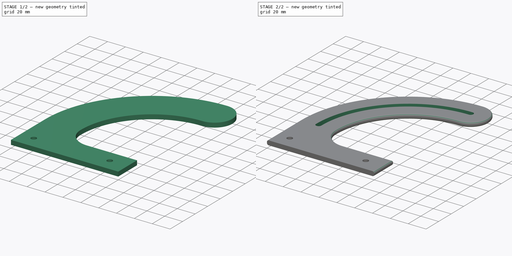
[diagram: build sequence overview — one tinted view per stage of 2, left to right]
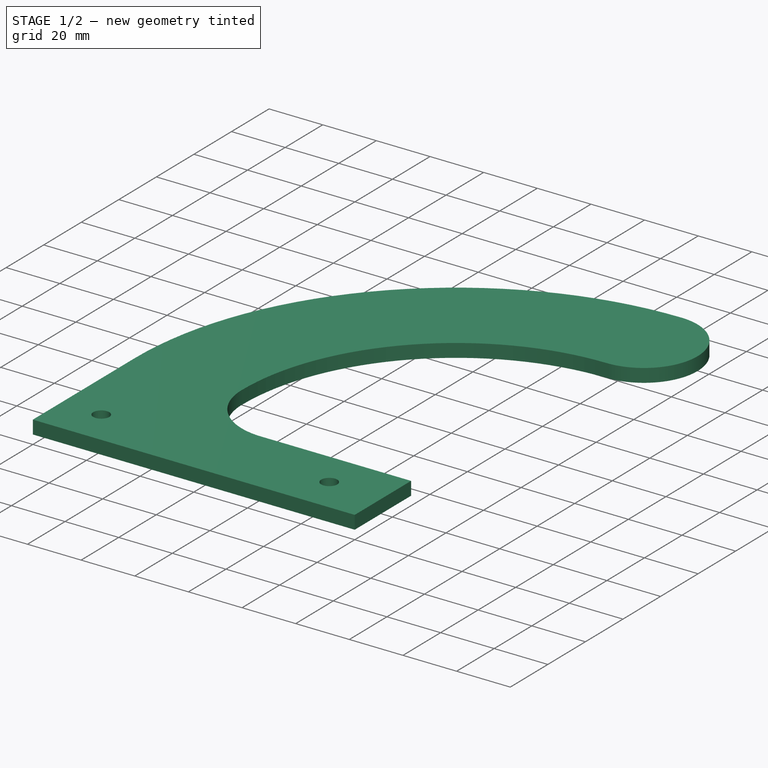
[diagram: stage 1 of 2 — iso view after this stage's code; geometry added in this stage tinted green]
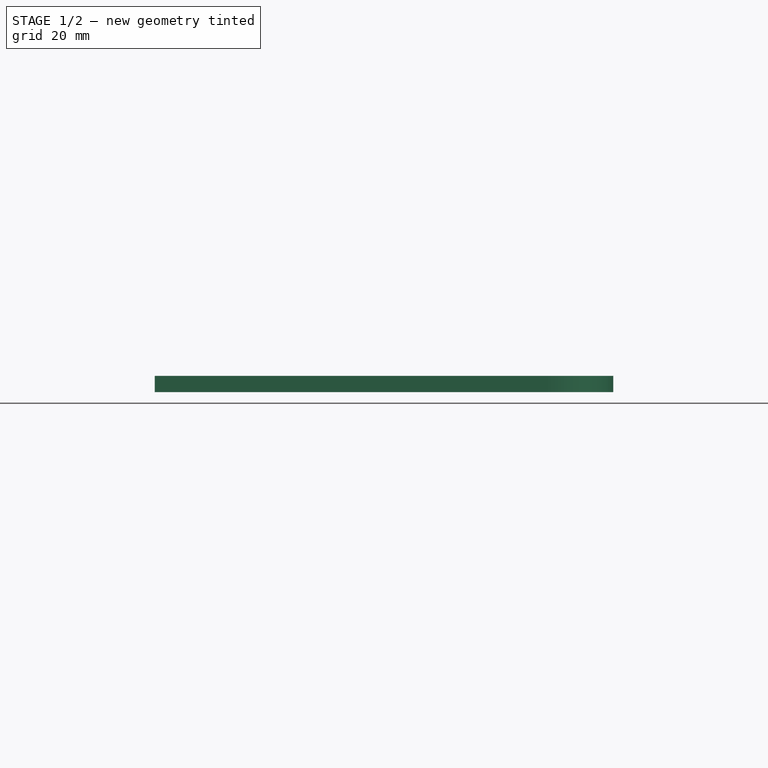
[diagram: stage 1 of 2 — front view after this stage's code; geometry added in this stage tinted green]
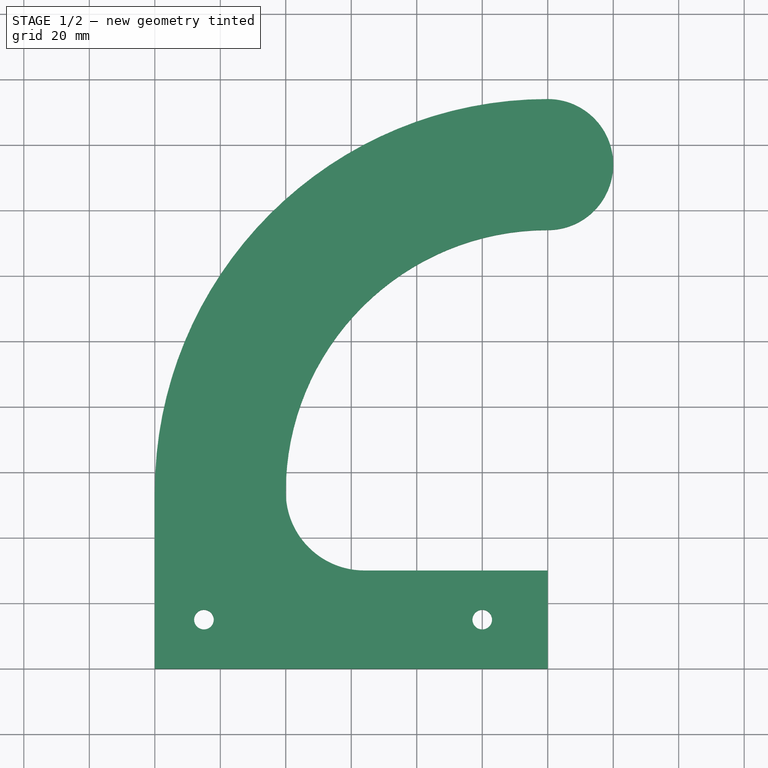
[diagram: stage 1 of 2 — top view after this stage's code; geometry added in this stage tinted green]
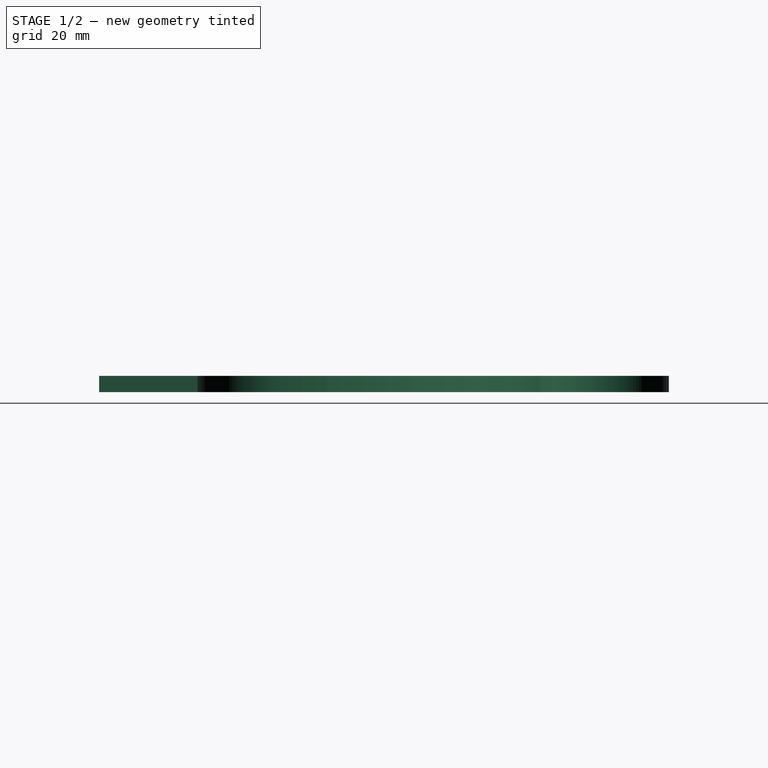
[diagram: stage 1 of 2 — right view after this stage's code; geometry added in this stage tinted green]
FCSTD DOCUMENT  (FreeCAD 0.19R24291 (Git))
Label: Halter_Unten_V3
License: All rights reserved
LicenseURL: http://en.wikipedia.org/wiki/All_rights_reserved
objects: Sketcher::SketchObject×3, PartDesign::Pad×1, PartDesign::Hole×1, PartDesign::Pocket×1, PartDesign::Fillet×1, PartDesign::Body×1
note: 12 computed .brp shape members not serialized (recipe doc carries the construction recipe); baked Part::Feature solids carry a one-line shape summary decoded from their .brp

FEATURE [Sketcher::SketchObject] Sketch
  FullyConstrained = true
  MapMode = 5
  Support = -> [XY_Plane]
  sketch-geometry (12):
    g0: LineSegment StartX=0 StartY=0 StartZ=0 EndX=120 EndY=0 EndZ=0
    g1: LineSegment StartX=0 StartY=0 StartZ=0 EndX=0 EndY=54 EndZ=0
    g2: ArcOfCircle CenterX=120 CenterY=54 CenterZ=0 NormalX=0 NormalY=0 NormalZ=1 AngleXU=0 Radius=120 StartAngle=1.5708 EndAngle=3.14159
    g3: LineSegment StartX=0 StartY=54 StartZ=0 EndX=120 EndY=54 EndZ=0
    g4: LineSegment StartX=120 StartY=134 StartZ=0 EndX=120 EndY=54 EndZ=0
    g5: LineSegment StartX=120 StartY=0 StartZ=0 EndX=120 EndY=30 EndZ=0
    g6: LineSegment StartX=120 StartY=30 StartZ=0 EndX=64 EndY=30 EndZ=0
    g7: ArcOfCircle CenterX=120 CenterY=54 CenterZ=0 NormalX=0 NormalY=0 NormalZ=1 AngleXU=0 Radius=80 StartAngle=1.5708 EndAngle=3.14159
    g8: ArcOfCircle CenterX=64 CenterY=54 CenterZ=0 NormalX=0 NormalY=0 NormalZ=1 AngleXU=0 Radius=24 StartAngle=3.14159 EndAngle=4.71239
    g9: LineSegment StartX=64 StartY=30 StartZ=0 EndX=64 EndY=54 EndZ=0
    g10: ArcOfCircle CenterX=120 CenterY=154 CenterZ=0 NormalX=0 NormalY=0 NormalZ=1 AngleXU=0 Radius=20 StartAngle=4.71239 EndAngle=7.85398
    g11: LineSegment StartX=120 StartY=174 StartZ=0 EndX=120 EndY=134 EndZ=0
  constraints (34):
    c: Coincident(g0,g-1)
    c: Horizontal(g0)
    c: Coincident(g1,g0)
    c: PointOnObject(g1,g-2)
    c: DistanceY(g1,g1) = 54
    c: Coincident(g2,g1)
    c: Coincident(g3,g2)
    c: Horizontal(g3)
    c: Coincident(g4,g2)
    c: Vertical(g4)
    c: Coincident(g5,g0)
    c: Vertical(g5)
    c: Coincident(g6,g5)
    c: Horizontal(g6)
    c: Coincident(g3,g1)
    c: DistanceY(g5,g5) = 30
    c: PointOnObject(g7,g3)
    c: Coincident(g7,g2)
    c: Coincident(g9,g6)
    c: PointOnObject(g9,g3)
    c: Vertical(g9)
    c: Coincident(g8,g9)
    c: Coincident(g8,g6)
    c: Coincident(g8,g7)
    c: DistanceX(g1,g7) = 40
    c: DistanceX(g0,g0) = 120
    c: DistanceX(g2,g5) = 0
    c: Coincident(g10,g2)
    c: Coincident(g10,g7)
    c: Coincident(g7,g4)
    c: Coincident(g11,g2)
    c: Coincident(g11,g7)
    c: Vertical(g11)
    c: PointOnObject(g10,g11)
FEATURE [PartDesign::Pad] Pad  label="Grundplatte"
  Direction = (1,1,1)
  Length = 5
  Length2 = 100
  Profile = -> Sketch
  Type = 0
FEATURE [Sketcher::SketchObject] Sketch001
  ExternalGeometry = -> [Pad]
  FullyConstrained = true
  MapMode = 5
  Placement = pos=(0,0,5) rot=(0,0,1;0rad)
  Support = -> [Pad]
  sketch-geometry (3):
    g0: Circle CenterX=15 CenterY=15 CenterZ=0 NormalX=0 NormalY=0 NormalZ=1 AngleXU=0 Radius=3
    g1: Circle CenterX=100 CenterY=15 CenterZ=0 NormalX=0 NormalY=0 NormalZ=1 AngleXU=0 Radius=3
    g2: LineSegment StartX=15 StartY=15 StartZ=0 EndX=100 EndY=15 EndZ=0
  constraints (8):
    c: Coincident(g2,g0)
    c: Coincident(g2,g1)
    c: Equal(g1,g0)
    c: Horizontal(g2)
    c: DistanceX(g1,g-3) = 20
    c: DistanceY(g-3,g1) = 15
    c: DistanceX(g-1,g0) = 15
    c: Diameter(g1) = 6
FEATURE [PartDesign::Hole] Hole
  BaseFeature = -> Pad
  Depth = 25
  DepthType = 1
  Diameter = 6
  DrillForDepth = false
  DrillPoint = 1
  DrillPointAngle = 118
  HoleCutCountersinkAngle = 90
  HoleCutCustomValues = false
  HoleCutDepth = 0
  HoleCutDiameter = 6.1
  HoleCutType = 0
  ModelActualThread = false
  Profile = -> Sketch001
  Tapered = false
  TaperedAngle = 90
  ThreadAngle = 0
  ThreadClass = 0
  ThreadCutOffInner = 0
  ThreadCutOffOuter = 0
  ThreadDirection = 0
  ThreadFit = 0
  ThreadPitch = 0
  ThreadSize = 0
  ThreadType = 0
  Threaded = false
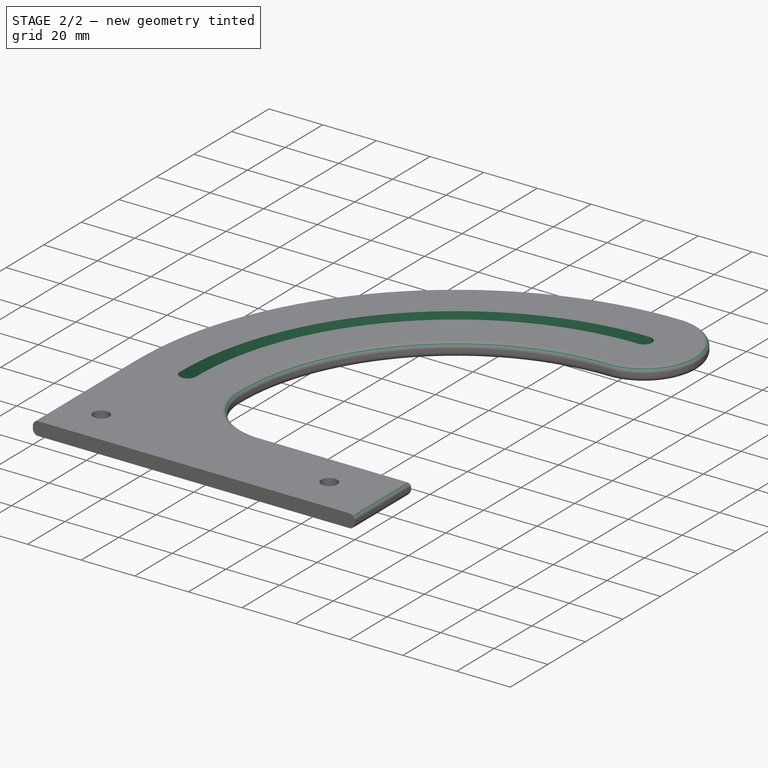
[diagram: stage 2 of 2 — iso view after this stage's code; geometry added in this stage tinted green]
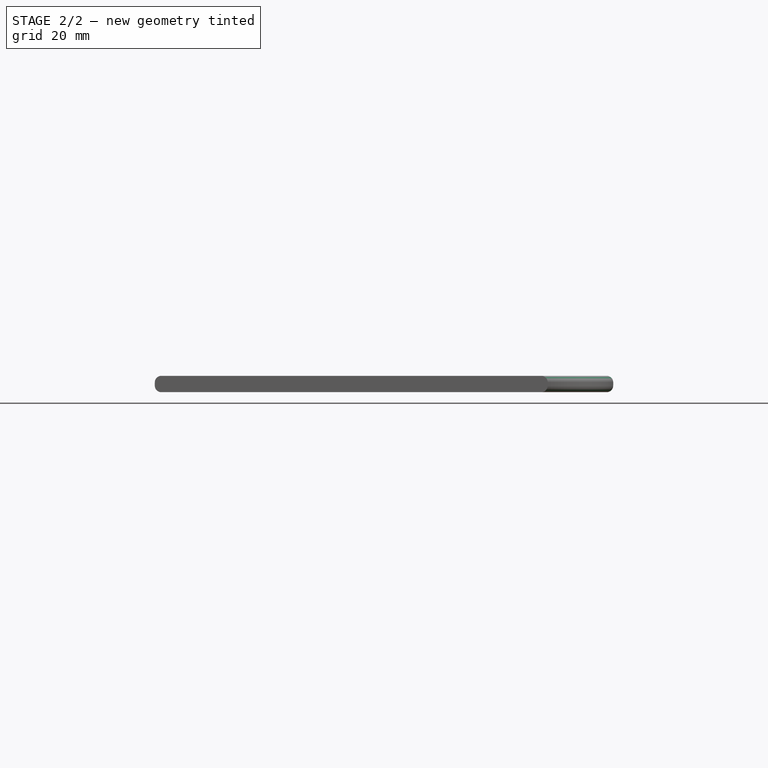
[diagram: stage 2 of 2 — front view after this stage's code; geometry added in this stage tinted green]
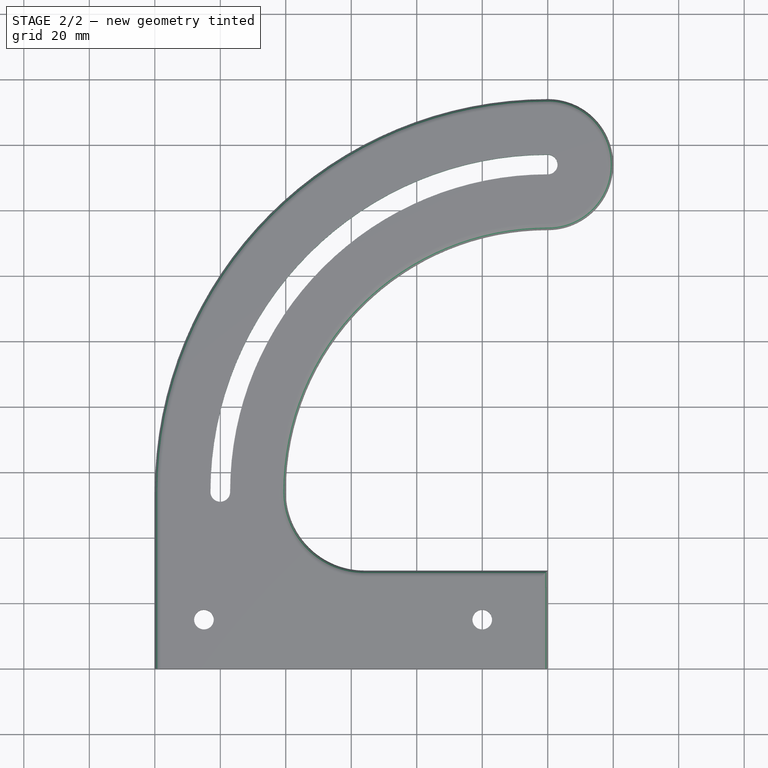
[diagram: stage 2 of 2 — top view after this stage's code; geometry added in this stage tinted green]
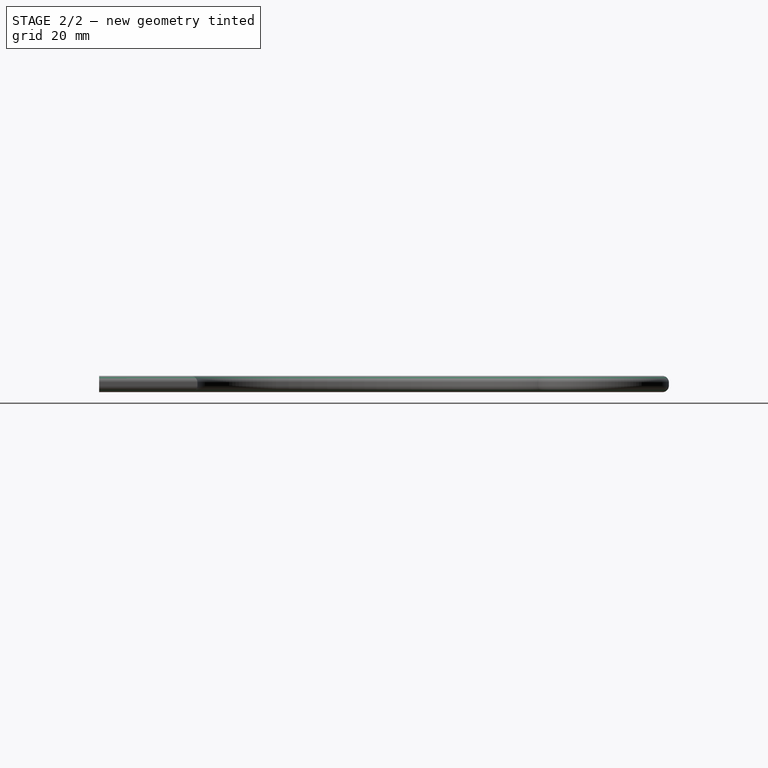
[diagram: stage 2 of 2 — right view after this stage's code; geometry added in this stage tinted green]
FEATURE [Sketcher::SketchObject] Sketch002
  ExternalGeometry = -> [Hole]
  FullyConstrained = true
  MapMode = 5
  Placement = pos=(0,0,5) rot=(0,0,1;0rad)
  Support = -> [Hole]
  sketch-geometry (6):
    g0: LineSegment StartX=120 StartY=174 StartZ=0 EndX=120 EndY=54 EndZ=0
    g1: LineSegment StartX=120 StartY=54 StartZ=0 EndX=0 EndY=54 EndZ=0
    g2: ArcOfCircle CenterX=120 CenterY=54 CenterZ=0 NormalX=0 NormalY=0 NormalZ=1 AngleXU=0 Radius=103 StartAngle=1.5708 EndAngle=3.14159
    g3: ArcOfCircle CenterX=120 CenterY=54 CenterZ=0 NormalX=0 NormalY=0 NormalZ=1 AngleXU=0 Radius=97 StartAngle=1.5708 EndAngle=3.14159
    g4: ArcOfCircle CenterX=20 CenterY=54 CenterZ=0 NormalX=0 NormalY=0 NormalZ=1 AngleXU=0 Radius=3 StartAngle=3.14159 EndAngle=6.28319
    g5: ArcOfCircle CenterX=120 CenterY=154 CenterZ=0 NormalX=0 NormalY=0 NormalZ=1 AngleXU=0 Radius=3 StartAngle=4.71239 EndAngle=7.85398
  constraints (20):
    c: Coincident(g0,g-3)
    c: Coincident(g0,g-3)
    c: Coincident(g1,g0)
    c: Coincident(g1,g-3)
    c: Coincident(g2,g0)
    c: PointOnObject(g2,g1)
    c: PointOnObject(g2,g0)
    c: Coincident(g3,g2)
    c: PointOnObject(g3,g1)
    c: PointOnObject(g3,g0)
    c: DistanceX(g1,g2) = 17
    c: DistanceX(g3,g-4) = 17
    c: DistanceX(g2,g3) = 6
    c: Coincident(g4,g2)
    c: Coincident(g4,g3)
    c: PointOnObject(g4,g1)
    c: PointOnObject(g5,g0)
    c: Coincident(g5,g2)
    c: Coincident(g5,g3)
    c: DistanceY(g-1,g1) = 54
FEATURE [PartDesign::Pocket] Pocket
  BaseFeature = -> Hole
  Length = 5
  Length2 = 100
  Profile = -> Sketch002
  Type = 1
FEATURE [PartDesign::Fillet] Fillet
  Base = -> Pocket [Edge24,Edge13,Edge22,Edge7,Edge4,Edge10,Edge23,Edge11,Edge6,Edge3,Edge9,Edge12,Edge15,Edge26]
  BaseFeature = -> Pocket
  Radius = 2
  SupportTransform = false
FEATURE [PartDesign::Body] Body
  Group = -> [Sketch,Pad,Sketch001,Hole,Sketch002,Pocket,Fillet]
  Origin = -> Origin
  Tip = -> Fillet
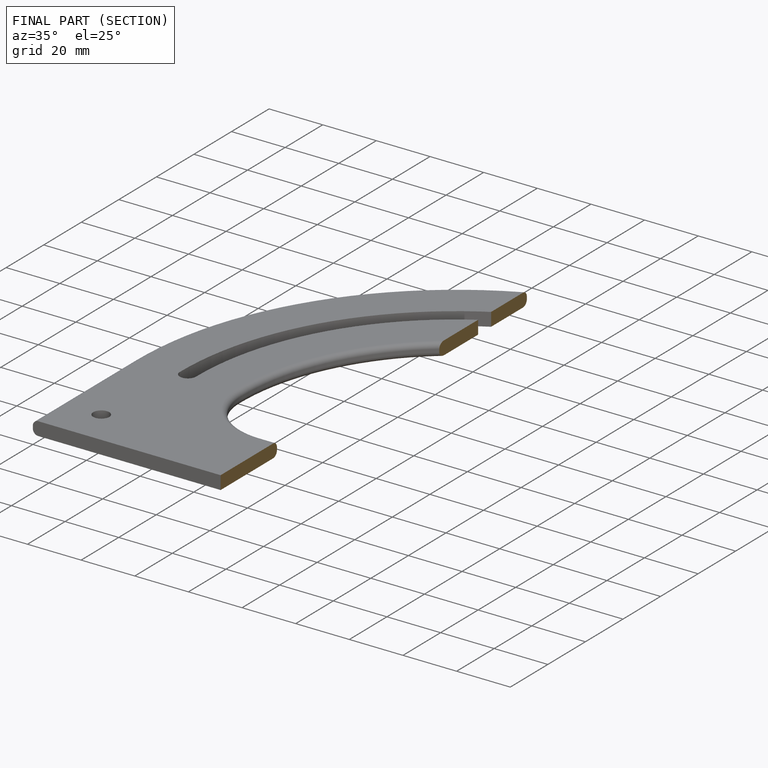
[diagram: finished part — half-section view (interior)]
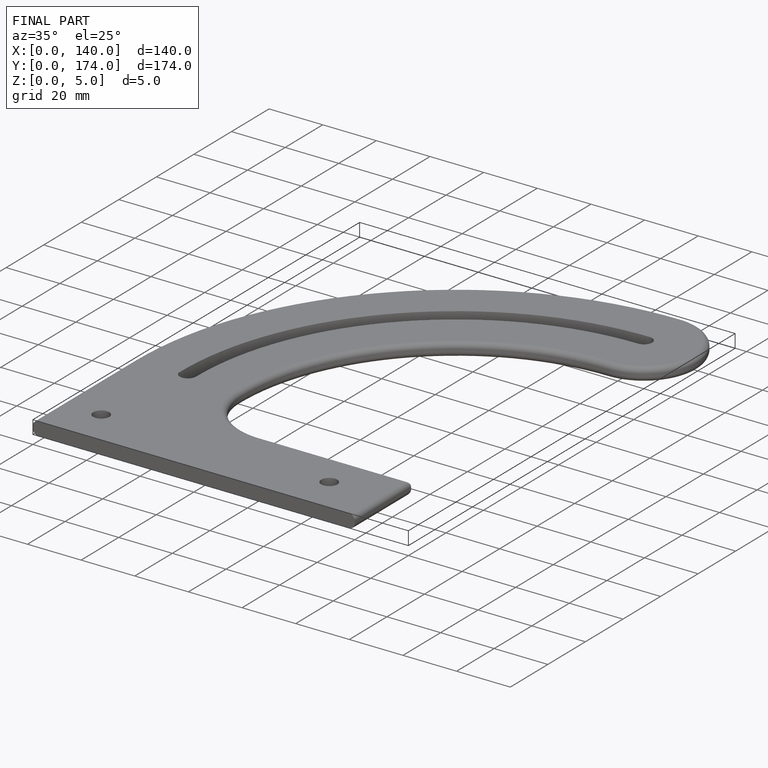
[diagram: finished part — iso view with bounding-box wireframe]
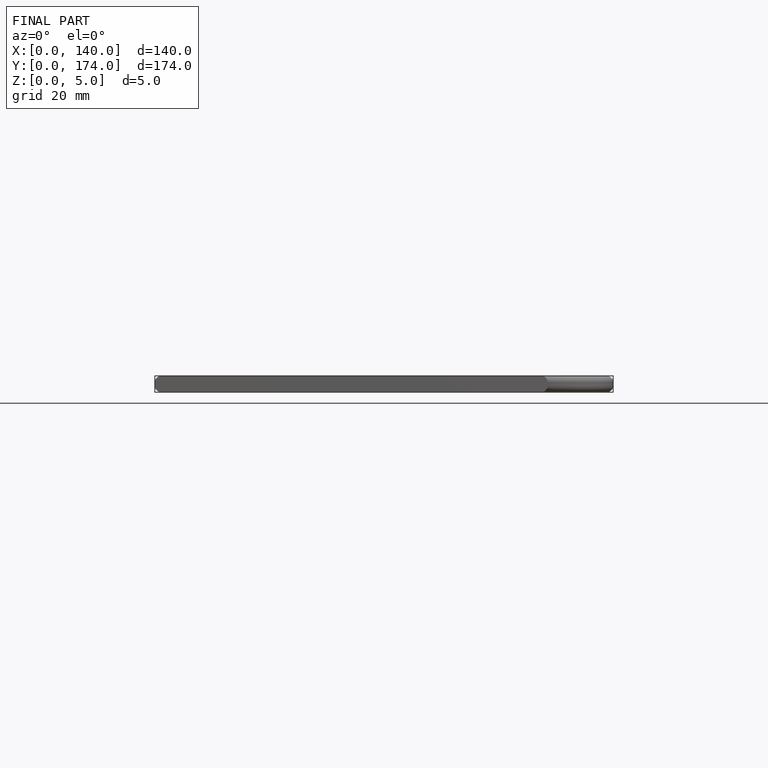
[diagram: finished part — front view with bounding-box wireframe]
